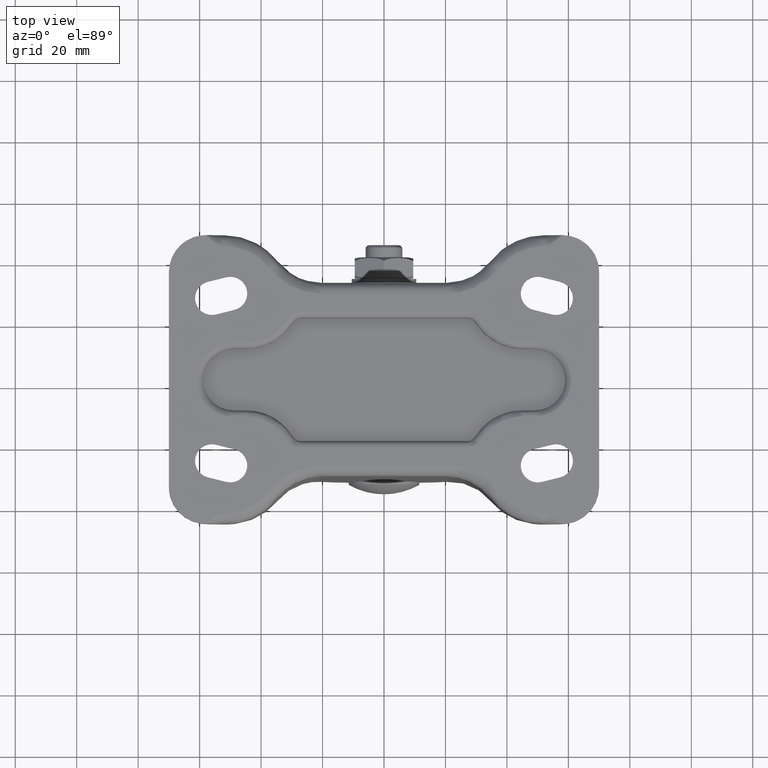
[diagram: clean part render]
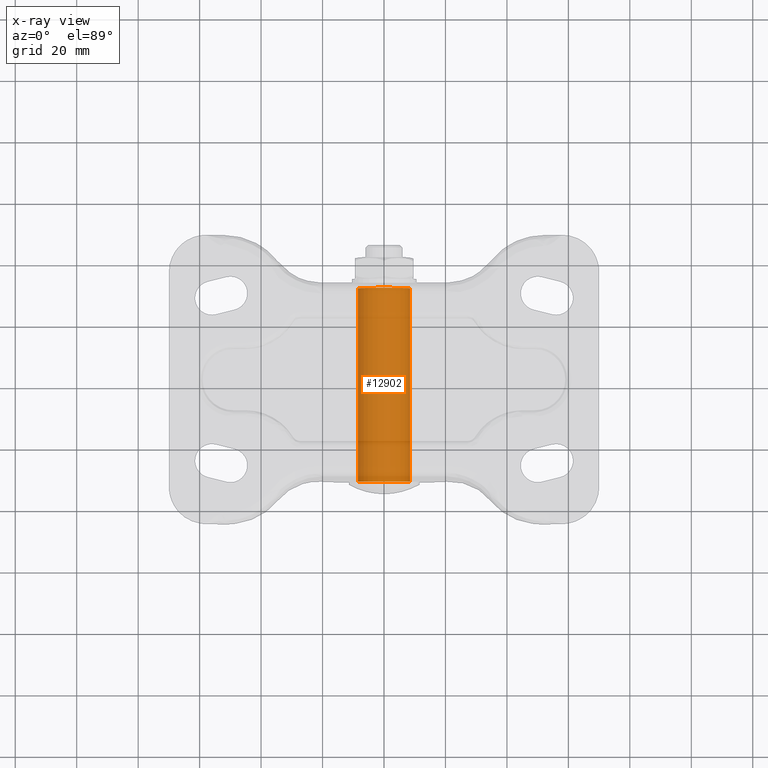
[diagram: x-ray — body ghosted, one internal face saturated and labeled with its STEP entity id]
A machine part, top view, then the same camera in x-ray: the body is ghosted and one INTERNAL B-rep face — a face not visible from any outside direction — is saturated and labeled: STEP entity #12902.
In plain terms, the highlighted face is a freeform B-spline surface patch.
Its self-contained STEP definition (entity closure, byte-faithful):
#12647=CARTESIAN_POINT('',(0.0,-31.500000000000000,8.490000000000118));
#12648=VERTEX_POINT('',#12647);
#12649=CARTESIAN_POINT('',(-8.474171425526752,-31.500000000000000,0.518295528296292));
#12650=VERTEX_POINT('',#12649);
#12651=CARTESIAN_POINT('',(0.0,-31.500000000000000,8.490000000000118));
#12652=CARTESIAN_POINT('',(-7.986601092683404,-31.500000000000000,8.490000000000118));
#12653=CARTESIAN_POINT('',(-8.474171425526755,-31.500000000000000,0.518295528296291));
#12661=(BOUNDED_CURVE()B_SPLINE_CURVE(2,(#12651,#12652,#12653),.UNSPECIFIED.,.F.,.U.)B_SPLINE_CURVE_WITH_KNOTS((3,3),(0.500000000000000,0.739332962235745),.UNSPECIFIED.)CURVE()GEOMETRIC_REPRESENTATION_ITEM()RATIONAL_B_SPLINE_CURVE((1.0,0.719603993290457,0.976072041659863))REPRESENTATION_ITEM(''));
#12662=EDGE_CURVE('',#12648,#12650,#12661,.T.);
#12681=CARTESIAN_POINT('',(8.474171425526754,-31.500000000000000,-0.518309528296478));
#12682=VERTEX_POINT('',#12681);
#12696=CARTESIAN_POINT('',(8.474171425526755,-31.500000000000004,-0.518309528296479));
#12697=CARTESIAN_POINT('',(8.490007000000210,-31.499999999999996,-0.259400174427721));
#12698=CARTESIAN_POINT('',(8.490007000000210,-31.500000000000000,-0.000007000000093));
#12699=CARTESIAN_POINT('',(8.490007000000210,-31.500000000000007,8.490000000000118));
#12700=CARTESIAN_POINT('',(0.0,-31.500000000000000,8.490000000000118));
#12708=(BOUNDED_CURVE()B_SPLINE_CURVE(2,(#12696,#12697,#12698,#12699,#12700),.UNSPECIFIED.,.F.,.U.)B_SPLINE_CURVE_WITH_KNOTS((3,2,3),(0.239332962235745,0.250000000000000,0.500000000000000),.UNSPECIFIED.)CURVE()GEOMETRIC_REPRESENTATION_ITEM()RATIONAL_B_SPLINE_CURVE((0.976072041659863,0.987502787896090,1.0,0.707106781186547,1.0))REPRESENTATION_ITEM(''));
#12709=EDGE_CURVE('',#12682,#12648,#12708,.T.);
#12836=CARTESIAN_POINT('',(8.474171425545448,33.075000000000003,-0.518309527990818));
#12837=CARTESIAN_POINT('',(8.992473953536173,33.074999999999996,7.955861897554629));
#12838=CARTESIAN_POINT('',(0.518302527990725,33.075000000000003,8.474164425545355));
#12839=CARTESIAN_POINT('',(-7.955868897554724,33.074999999999996,8.992466953536081));
#12840=CARTESIAN_POINT('',(-8.474171425545448,33.075000000000003,0.518295527990633));
#12841=CARTESIAN_POINT('',(8.474171425545448,-33.114375000000010,-0.518309527990818));
#12842=CARTESIAN_POINT('',(8.992473953536173,-33.114375000000010,7.955861897554629));
#12843=CARTESIAN_POINT('',(0.518302527990725,-33.114375000000010,8.474164425545355));
#12844=CARTESIAN_POINT('',(-7.955868897554724,-33.114375000000010,8.992466953536081));
#12845=CARTESIAN_POINT('',(-8.474171425545448,-33.114375000000010,0.518295527990633));
#12853=(BOUNDED_SURFACE()B_SPLINE_SURFACE(2,1,((#12836,#12841),(#12837,#12842),(#12838,#12843),(#12839,#12844),(#12840,#12845)),.UNSPECIFIED.,.F.,.F.,.U.)B_SPLINE_SURFACE_WITH_KNOTS((3,2,3),(2,2),(0.0,14.066704176170401,28.133408352340808),(0.0,66.189375000000013),.UNSPECIFIED.)GEOMETRIC_REPRESENTATION_ITEM()RATIONAL_B_SPLINE_SURFACE(((1.0,1.0),(0.707106781186548,0.707106781186548),(1.0,1.0),(0.707106781186548,0.707106781186548),(1.0,1.0)))REPRESENTATION_ITEM('')SURFACE());
#12854=ORIENTED_EDGE('',*,*,#12709,.F.);
#12855=CARTESIAN_POINT('',(8.474171425526754,31.500000000000000,-0.518309528296478));
#12856=VERTEX_POINT('',#12855);
#12857=CARTESIAN_POINT('',(8.474171425526754,31.500000000000000,-0.518309528296478));
#12858=CARTESIAN_POINT('',(8.474171425526754,-31.500000000000000,-0.518309528296478));
#12859=QUASI_UNIFORM_CURVE('',1,(#12857,#12858),.UNSPECIFIED.,.F.,.U.);
#12860=EDGE_CURVE('',#12856,#12682,#12859,.T.);
#12861=ORIENTED_EDGE('',*,*,#12860,.F.);
#12862=CARTESIAN_POINT('',(0.0,31.500000000000000,8.490000000000118));
#12863=VERTEX_POINT('',#12862);
#12864=CARTESIAN_POINT('',(8.474171425526755,31.500000000000004,-0.518309528296479));
#12865=CARTESIAN_POINT('',(8.490007000000210,31.499999999999996,-0.259400174427721));
#12866=CARTESIAN_POINT('',(8.490007000000210,31.500000000000000,-0.000007000000093));
#12867=CARTESIAN_POINT('',(8.490007000000210,31.500000000000007,8.490000000000118));
#12868=CARTESIAN_POINT('',(0.0,31.500000000000000,8.490000000000118));
#12876=(BOUNDED_CURVE()B_SPLINE_CURVE(2,(#12864,#12865,#12866,#12867,#12868),.UNSPECIFIED.,.F.,.U.)B_SPLINE_CURVE_WITH_KNOTS((3,2,3),(0.239332962235745,0.250000000000000,0.500000000000000),.UNSPECIFIED.)CURVE()GEOMETRIC_REPRESENTATION_ITEM()RATIONAL_B_SPLINE_CURVE((0.976072041659863,0.987502787896090,1.0,0.707106781186547,1.0))REPRESENTATION_ITEM(''));
#12877=EDGE_CURVE('',#12856,#12863,#12876,.T.);
#12878=ORIENTED_EDGE('',*,*,#12877,.T.);
#12879=CARTESIAN_POINT('',(-8.474171425526752,31.500000000000000,0.518295528296292));
#12880=VERTEX_POINT('',#12879);
#12881=CARTESIAN_POINT('',(0.0,31.500000000000000,8.490000000000118));
#12882=CARTESIAN_POINT('',(-7.986601092683404,31.500000000000000,8.490000000000118));
#12883=CARTESIAN_POINT('',(-8.474171425526755,31.500000000000000,0.518295528296291));
#12891=(BOUNDED_CURVE()B_SPLINE_CURVE(2,(#12881,#12882,#12883),.UNSPECIFIED.,.F.,.U.)B_SPLINE_CURVE_WITH_KNOTS((3,3),(0.500000000000000,0.739332962235745),.UNSPECIFIED.)CURVE()GEOMETRIC_REPRESENTATION_ITEM()RATIONAL_B_SPLINE_CURVE((1.0,0.719603993290457,0.976072041659863))REPRESENTATION_ITEM(''));
#12892=EDGE_CURVE('',#12863,#12880,#12891,.T.);
#12893=ORIENTED_EDGE('',*,*,#12892,.T.);
#12894=CARTESIAN_POINT('',(-8.474171425526752,31.500000000000000,0.518295528296292));
#12895=CARTESIAN_POINT('',(-8.474171425526752,-31.500000000000000,0.518295528296292));
#12896=QUASI_UNIFORM_CURVE('',1,(#12894,#12895),.UNSPECIFIED.,.F.,.U.);
#12897=EDGE_CURVE('',#12880,#12650,#12896,.T.);
#12898=ORIENTED_EDGE('',*,*,#12897,.T.);
#12899=ORIENTED_EDGE('',*,*,#12662,.F.);
#12900=EDGE_LOOP('',(#12854,#12861,#12878,#12893,#12898,#12899));
#12901=FACE_OUTER_BOUND('',#12900,.T.);
#12902=ADVANCED_FACE('',(#12901),#12853,.T.);